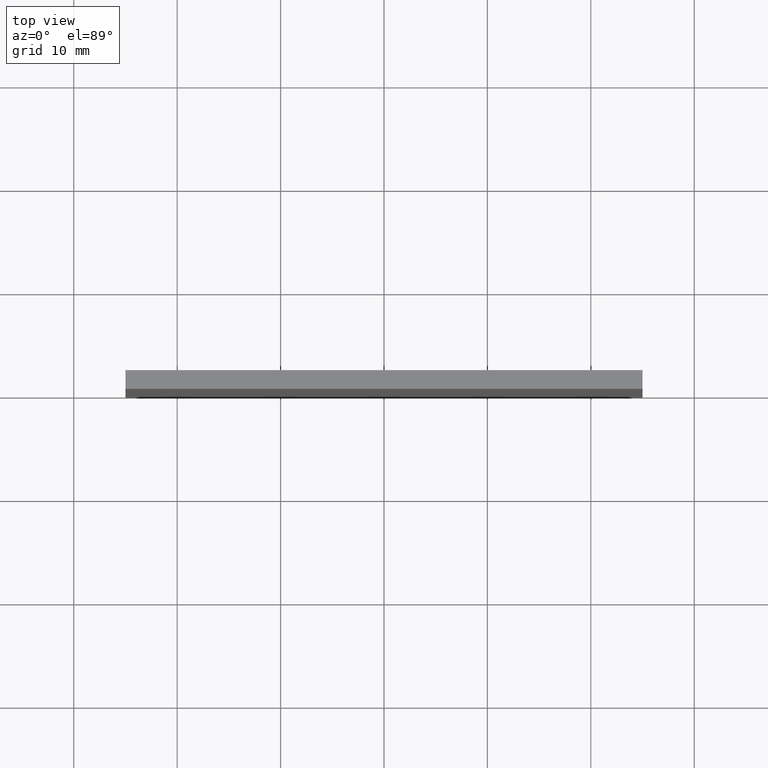
[diagram: clean part render]
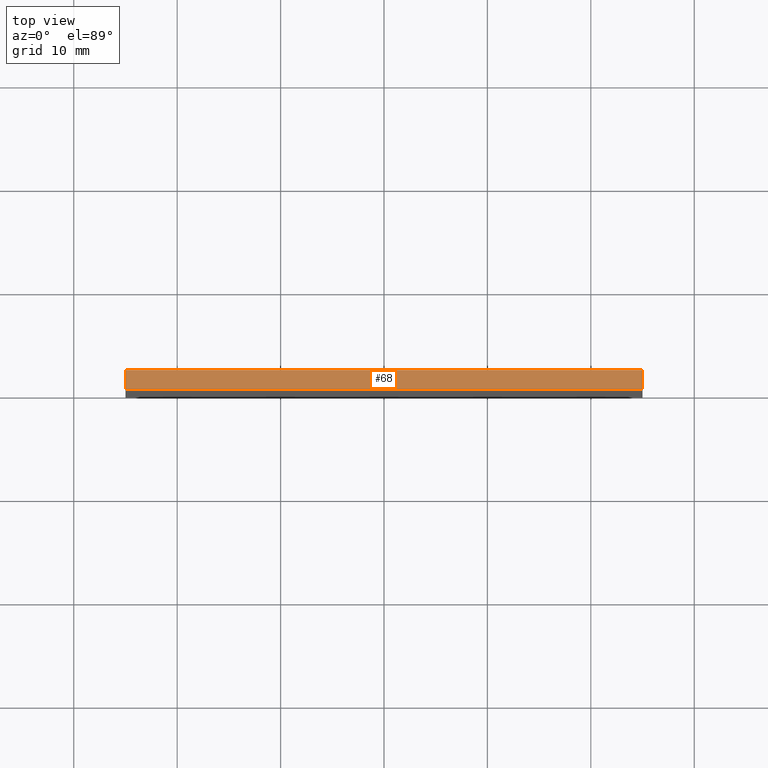
[diagram: same view with one face highlighted and labeled with its STEP entity id]
A machine part, top view. The second image highlights one B-rep face of the part: STEP entity #68.
In plain terms, the highlighted planar face has unit normal (0, 0, -1).
Its self-contained STEP definition (entity closure, byte-faithful):
#11 = CARTESIAN_POINT ( 'NONE',  ( -24.99999999999998900, 1.820000000000000100, 24.99999999999999600 ) ) ;
#18 = CARTESIAN_POINT ( 'NONE',  ( 25.00000000000001100, 0.0000000000000000000, 24.99999999999999600 ) ) ;
#22 = VECTOR ( 'NONE', #59, 1000.000000000000000 ) ;
#25 = CARTESIAN_POINT ( 'NONE',  ( 25.00000000000001100, 1.820000000000000100, 24.99999999999999600 ) ) ;
#30 = EDGE_CURVE ( 'NONE', #189, #74, #62, .T. ) ;
#31 = LINE ( 'NONE', #194, #50 ) ;
#37 = DIRECTION ( 'NONE',  ( -0.0000000000000000000, -1.000000000000000000, -0.0000000000000000000 ) ) ;
#41 = ORIENTED_EDGE ( 'NONE', *, *, #30, .F. ) ;
#44 = VECTOR ( 'NONE', #108, 1000.000000000000000 ) ;
#50 = VECTOR ( 'NONE', #37, 1000.000000000000000 ) ;
#53 = AXIS2_PLACEMENT_3D ( 'NONE', #154, #148, #197 ) ;
#59 = DIRECTION ( 'NONE',  ( -0.0000000000000000000, -1.000000000000000000, -0.0000000000000000000 ) ) ;
#62 = LINE ( 'NONE', #95, #142 ) ;
#68 = ADVANCED_FACE ( 'NONE', ( #104 ), #144, .F. ) ;
#72 = LINE ( 'NONE', #192, #44 ) ;
#74 = VERTEX_POINT ( 'NONE', #25 ) ;
#75 = CARTESIAN_POINT ( 'NONE',  ( -24.99999999999998900, 1.820000000000000100, 24.99999999999999600 ) ) ;
#93 = ORIENTED_EDGE ( 'NONE', *, *, #110, .T. ) ;
#95 = CARTESIAN_POINT ( 'NONE',  ( -24.99999999999998900, 1.820000000000000100, 24.99999999999999600 ) ) ;
#100 = EDGE_LOOP ( 'NONE', ( #93, #155, #41, #181 ) ) ;
#104 = FACE_OUTER_BOUND ( 'NONE', #100, .T. ) ;
#106 = EDGE_CURVE ( 'NONE', #189, #124, #157, .T. ) ;
#108 = DIRECTION ( 'NONE',  ( 1.000000000000000000, 0.0000000000000000000, 0.0000000000000000000 ) ) ;
#110 = EDGE_CURVE ( 'NONE', #124, #143, #72, .T. ) ;
#124 = VERTEX_POINT ( 'NONE', #167 ) ;
#133 = DIRECTION ( 'NONE',  ( 1.000000000000000000, 0.0000000000000000000, 0.0000000000000000000 ) ) ;
#142 = VECTOR ( 'NONE', #133, 1000.000000000000000 ) ;
#143 = VERTEX_POINT ( 'NONE', #18 ) ;
#144 = PLANE ( 'NONE',  #53 ) ;
#148 = DIRECTION ( 'NONE',  ( 0.0000000000000000000, 0.0000000000000000000, -1.000000000000000000 ) ) ;
#154 = CARTESIAN_POINT ( 'NONE',  ( -24.99999999999998900, 1.820000000000000100, 24.99999999999999600 ) ) ;
#155 = ORIENTED_EDGE ( 'NONE', *, *, #170, .F. ) ;
#157 = LINE ( 'NONE', #11, #22 ) ;
#167 = CARTESIAN_POINT ( 'NONE',  ( -24.99999999999998900, 0.0000000000000000000, 24.99999999999999600 ) ) ;
#170 = EDGE_CURVE ( 'NONE', #74, #143, #31, .T. ) ;
#181 = ORIENTED_EDGE ( 'NONE', *, *, #106, .T. ) ;
#189 = VERTEX_POINT ( 'NONE', #75 ) ;
#192 = CARTESIAN_POINT ( 'NONE',  ( -24.99999999999998900, 0.0000000000000000000, 24.99999999999999600 ) ) ;
#194 = CARTESIAN_POINT ( 'NONE',  ( 25.00000000000001100, 1.820000000000000100, 24.99999999999999600 ) ) ;
#197 = DIRECTION ( 'NONE',  ( -1.000000000000000000, 0.0000000000000000000, -0.0000000000000000000 ) ) ;